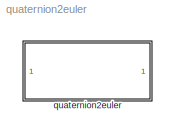
MODEL quaternion2euler
KIND model
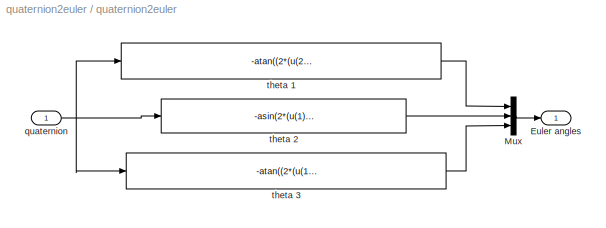
BLOCK [SubSystem] quaternion2euler
  MinAlgLoopOccurrences = off
  Ports = [1, 1]
  RTWSystemCode = Auto
  TreatAsAtomicUnit = off
BLOCK [Outport] quaternion2euler/Euler angles
  IconDisplay = Port number
BLOCK [Mux] quaternion2euler/Mux
  DisplayOption = bar
  Inputs = 3
  Ports = [3, 1]
BLOCK [Inport] quaternion2euler/quaternion
  IconDisplay = Port number
  LatchInput = off
  Port = 1
BLOCK [Fcn] quaternion2euler/theta 1
  Expr = -atan((2*(u(2)*u(3) + u(1)*u(4)))/(1-2*(u(1)*u(1) + u(2)*u(2))))
BLOCK [Fcn] quaternion2euler/theta 2
  Expr = -asin(2*(u(1)*u(3)-u(2)*u(4)))
BLOCK [Fcn] quaternion2euler/theta 3
  Expr = -atan((2*(u(1)*u(2) + u(3)*u(4)))/(1-2*(u(2)*u(2) + u(3)*u(3))))
LINE quaternion2euler/Mux:1 -> quaternion2euler/Euler angles:1
NET quaternion2euler/quaternion:1 -> quaternion2euler/theta 1:1, quaternion2euler/theta 2:1, quaternion2euler/theta 3:1
LINE quaternion2euler/theta 1:1 -> quaternion2euler/Mux:1
LINE quaternion2euler/theta 2:1 -> quaternion2euler/Mux:2
LINE quaternion2euler/theta 3:1 -> quaternion2euler/Mux:3
note: NET lines group one-source signal fan-out (src -> all destinations, sorted); 1:1 wires keep LINE
